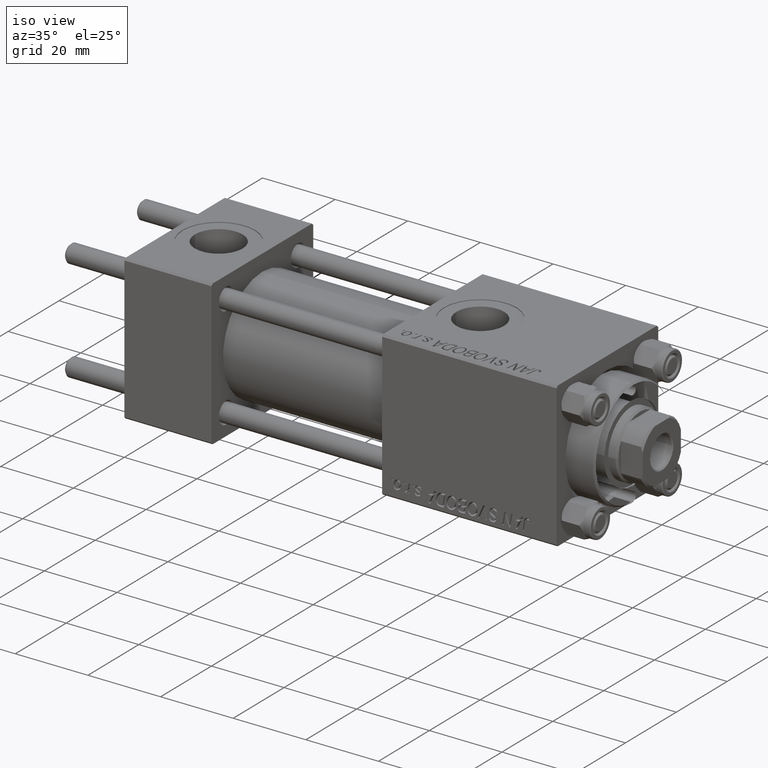
[diagram: clean part render]
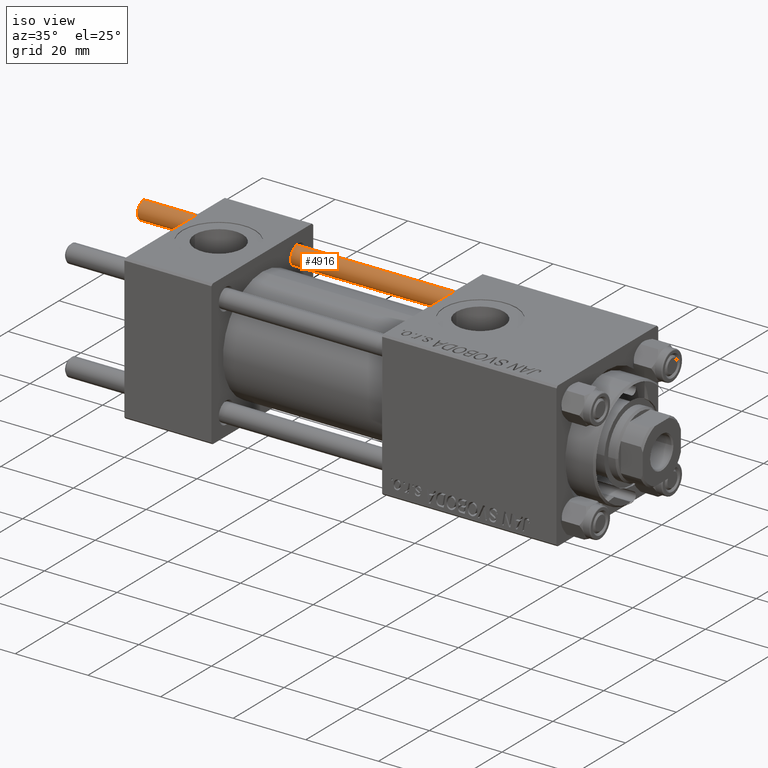
[diagram: same view with one face highlighted and labeled with its STEP entity id]
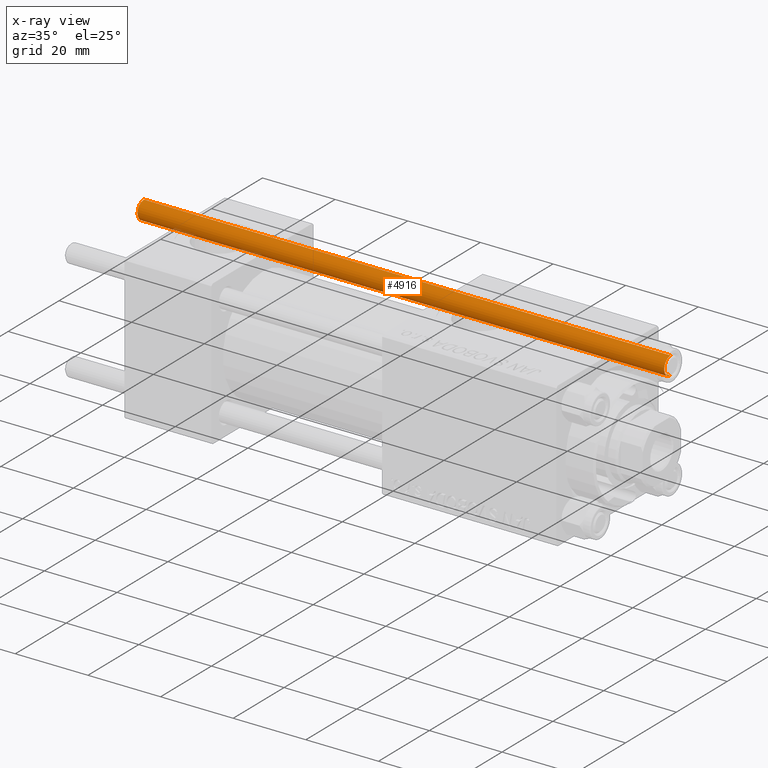
[diagram: x-ray of the same camera — body ghosted, the highlighted face saturated]
A machine part, iso view. The second image highlights one B-rep face of the part: STEP entity #4916.
The next image is the same camera in x-ray: the body ghosted, the highlighted face saturated — about 1% of this face is hidden behind the body in this view.
In plain terms, the highlighted cylindrical surface (edge-blend (fillet) strip) has radius 2.5 mm, axis along (-1, -0, -0).
Its self-contained STEP definition (entity closure, byte-faithful):
#1715 = DIRECTION ( 'NONE',  ( 0.000000000000000000, 0.000000000000000000, -1.000000000000000000 ) ) ;
#2025 = CARTESIAN_POINT ( 'NONE',  ( 2.500000000000000000, 3.061616997868383141E-16, 145.5000000000000284 ) ) ;
#3923 = ORIENTED_EDGE ( 'NONE', *, *, #9533, .T. ) ;
#4916 = ADVANCED_FACE ( 'NONE', ( #8350 ), #24747, .T. ) ;
#4935 = DIRECTION ( 'NONE',  ( -1.000000000000000000, 0.000000000000000000, 0.000000000000000000 ) ) ;
#5924 = VECTOR ( 'NONE', #11464, 1000.000000000000000 ) ;
#7287 = CARTESIAN_POINT ( 'NONE',  ( 2.500000000000000000, 3.061616997868383141E-16, 146.0000000000000000 ) ) ;
#8350 = FACE_OUTER_BOUND ( 'NONE', #10120, .T. ) ;
#8931 = CIRCLE ( 'NONE', #10623, 2.500000000000000000 ) ;
#9277 = VECTOR ( 'NONE', #40233, 1000.000000000000000 ) ;
#9533 = EDGE_CURVE ( 'NONE', #24421, #16686, #8931, .T. ) ;
#10120 = EDGE_LOOP ( 'NONE', ( #41511, #29358, #48435, #3923 ) ) ;
#10544 = AXIS2_PLACEMENT_3D ( 'NONE', #33535, #1715, #17625 ) ;
#10623 = AXIS2_PLACEMENT_3D ( 'NONE', #43291, #12037, #11777 ) ;
#11464 = DIRECTION ( 'NONE',  ( -0.000000000000000000, -0.000000000000000000, -1.000000000000000000 ) ) ;
#11777 = DIRECTION ( 'NONE',  ( 1.000000000000000000, 0.000000000000000000, 0.000000000000000000 ) ) ;
#12037 = DIRECTION ( 'NONE',  ( -0.000000000000000000, -0.000000000000000000, 1.000000000000000000 ) ) ;
#13292 = CARTESIAN_POINT ( 'NONE',  ( -2.500000000000000000, 0.000000000000000000, 145.5000000000000284 ) ) ;
#16686 = VERTEX_POINT ( 'NONE', #34089 ) ;
#17625 = DIRECTION ( 'NONE',  ( 1.000000000000000000, 0.000000000000000000, 0.000000000000000000 ) ) ;
#23862 = CIRCLE ( 'NONE', #10544, 2.500000000000000000 ) ;
#24421 = VERTEX_POINT ( 'NONE', #25220 ) ;
#24494 = CARTESIAN_POINT ( 'NONE',  ( 0.000000000000000000, 0.000000000000000000, 146.0000000000000000 ) ) ;
#24747 = CYLINDRICAL_SURFACE ( 'NONE', #26276, 2.500000000000000000 ) ;
#25220 = CARTESIAN_POINT ( 'NONE',  ( -2.500000000000000000, 0.000000000000000000, 0.5000000000000559552 ) ) ;
#25326 = EDGE_CURVE ( 'NONE', #37643, #31405, #23862, .T. ) ;
#26276 = AXIS2_PLACEMENT_3D ( 'NONE', #24494, #39629, #4935 ) ;
#29358 = ORIENTED_EDGE ( 'NONE', *, *, #25326, .T. ) ;
#31405 = VERTEX_POINT ( 'NONE', #13292 ) ;
#33535 = CARTESIAN_POINT ( 'NONE',  ( 0.000000000000000000, 0.000000000000000000, 145.5000000000000284 ) ) ;
#34089 = CARTESIAN_POINT ( 'NONE',  ( 2.500000000000000000, 3.061616997868383141E-16, 0.5000000000000559552 ) ) ;
#36324 = LINE ( 'NONE', #39732, #9277 ) ;
#37643 = VERTEX_POINT ( 'NONE', #2025 ) ;
#38565 = LINE ( 'NONE', #7287, #5924 ) ;
#39629 = DIRECTION ( 'NONE',  ( -0.000000000000000000, -0.000000000000000000, -1.000000000000000000 ) ) ;
#39732 = CARTESIAN_POINT ( 'NONE',  ( -2.500000000000000000, 0.000000000000000000, 146.0000000000000000 ) ) ;
#40233 = DIRECTION ( 'NONE',  ( -0.000000000000000000, -0.000000000000000000, -1.000000000000000000 ) ) ;
#41511 = ORIENTED_EDGE ( 'NONE', *, *, #43639, .F. ) ;
#42999 = EDGE_CURVE ( 'NONE', #31405, #24421, #36324, .T. ) ;
#43291 = CARTESIAN_POINT ( 'NONE',  ( 0.000000000000000000, 0.000000000000000000, 0.5000000000000559552 ) ) ;
#43639 = EDGE_CURVE ( 'NONE', #37643, #16686, #38565, .T. ) ;
#48435 = ORIENTED_EDGE ( 'NONE', *, *, #42999, .T. ) ;